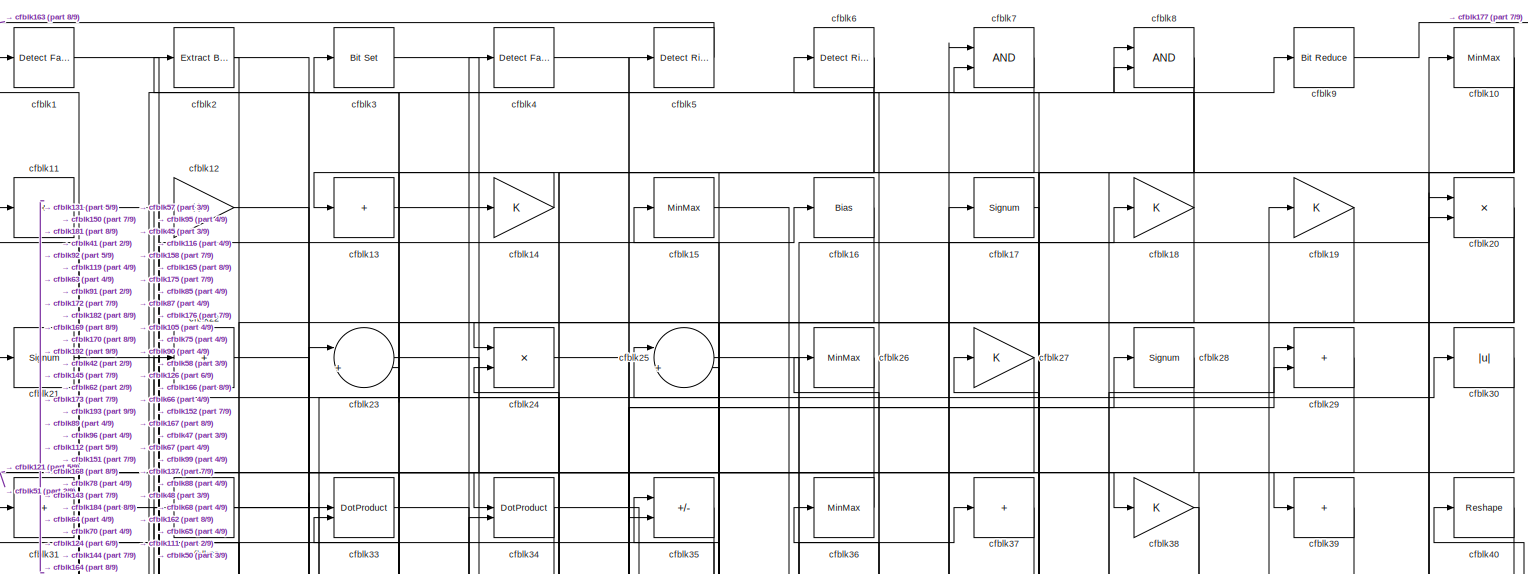
[diagram: root canvas - part 1/9, full width, top band]
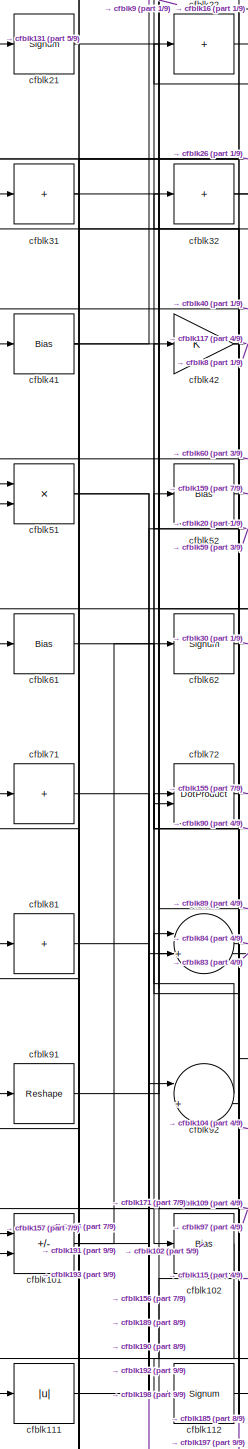
[diagram: root canvas - part 2/9, middle left region]
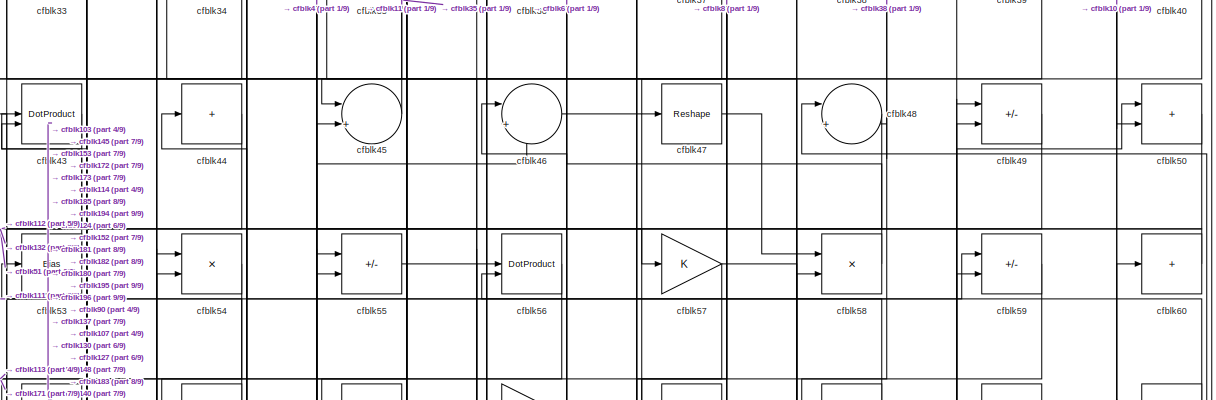
[diagram: root canvas - part 3/9, full width, top band]
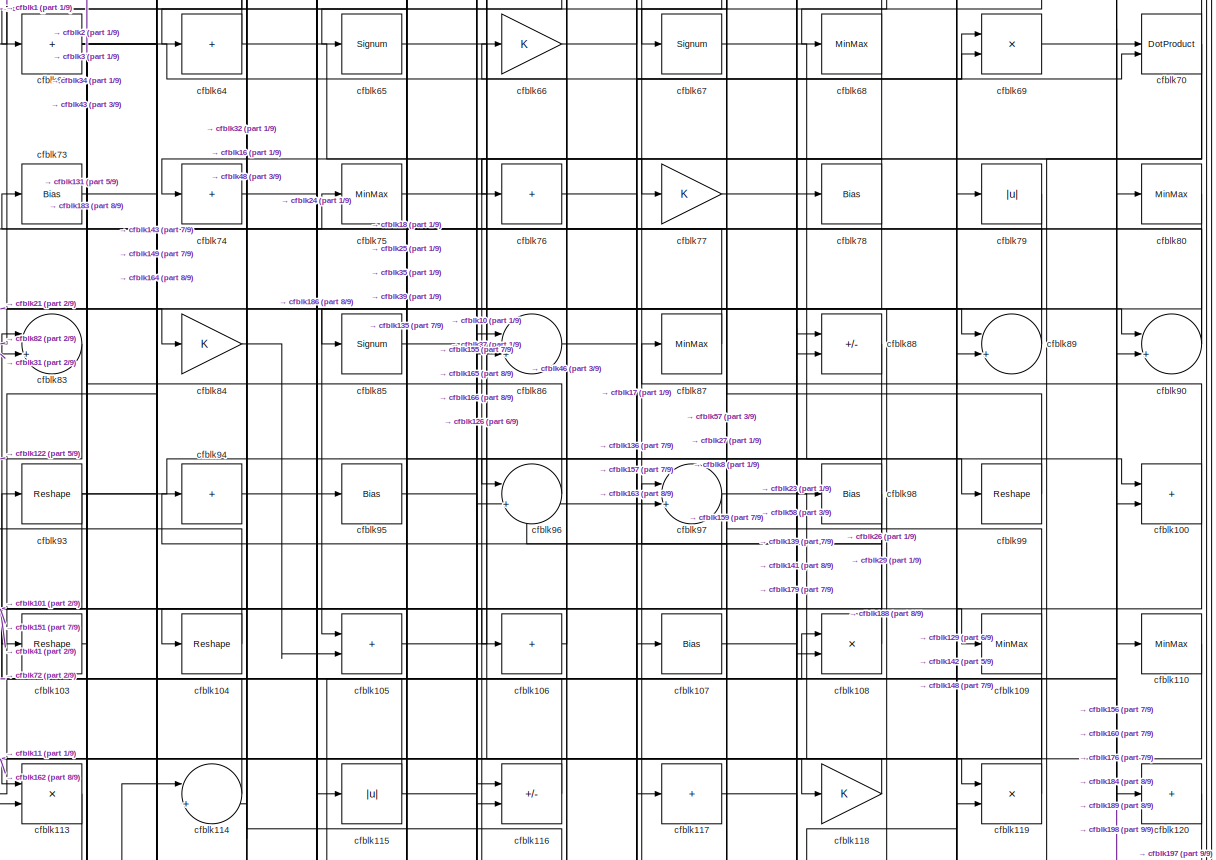
[diagram: root canvas - part 4/9, full width, middle band]
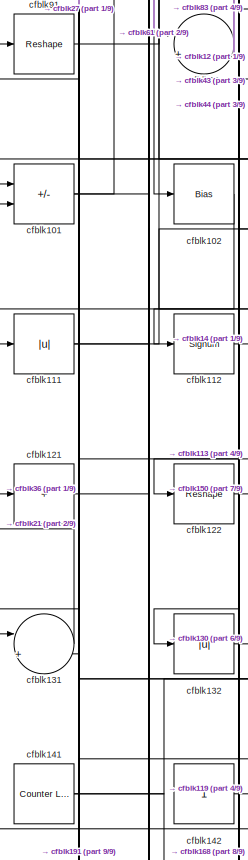
[diagram: root canvas - part 5/9, middle left region]
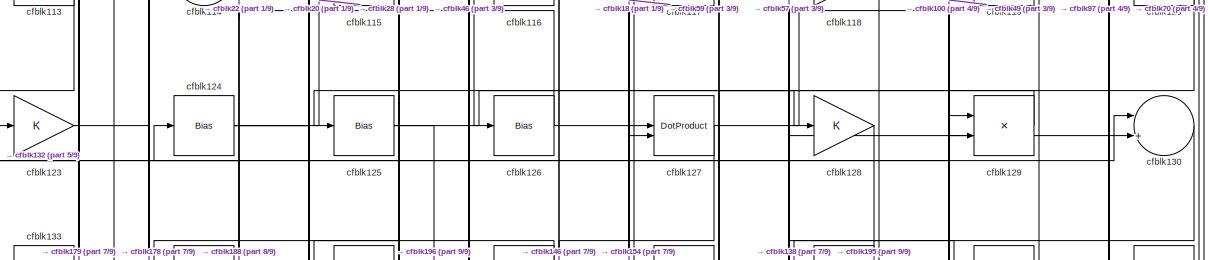
[diagram: root canvas - part 6/9, full width, middle band]
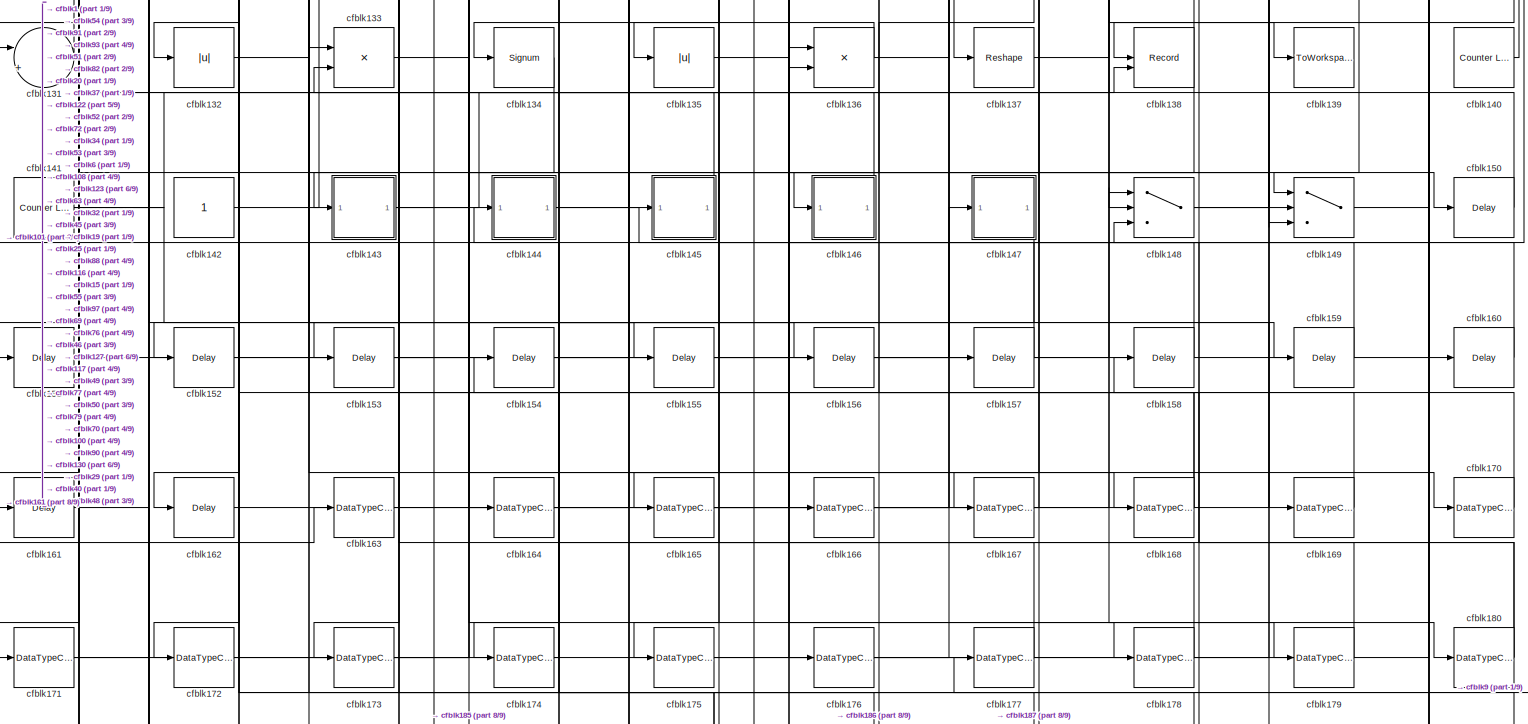
[diagram: root canvas - part 7/9, full width, bottom band]
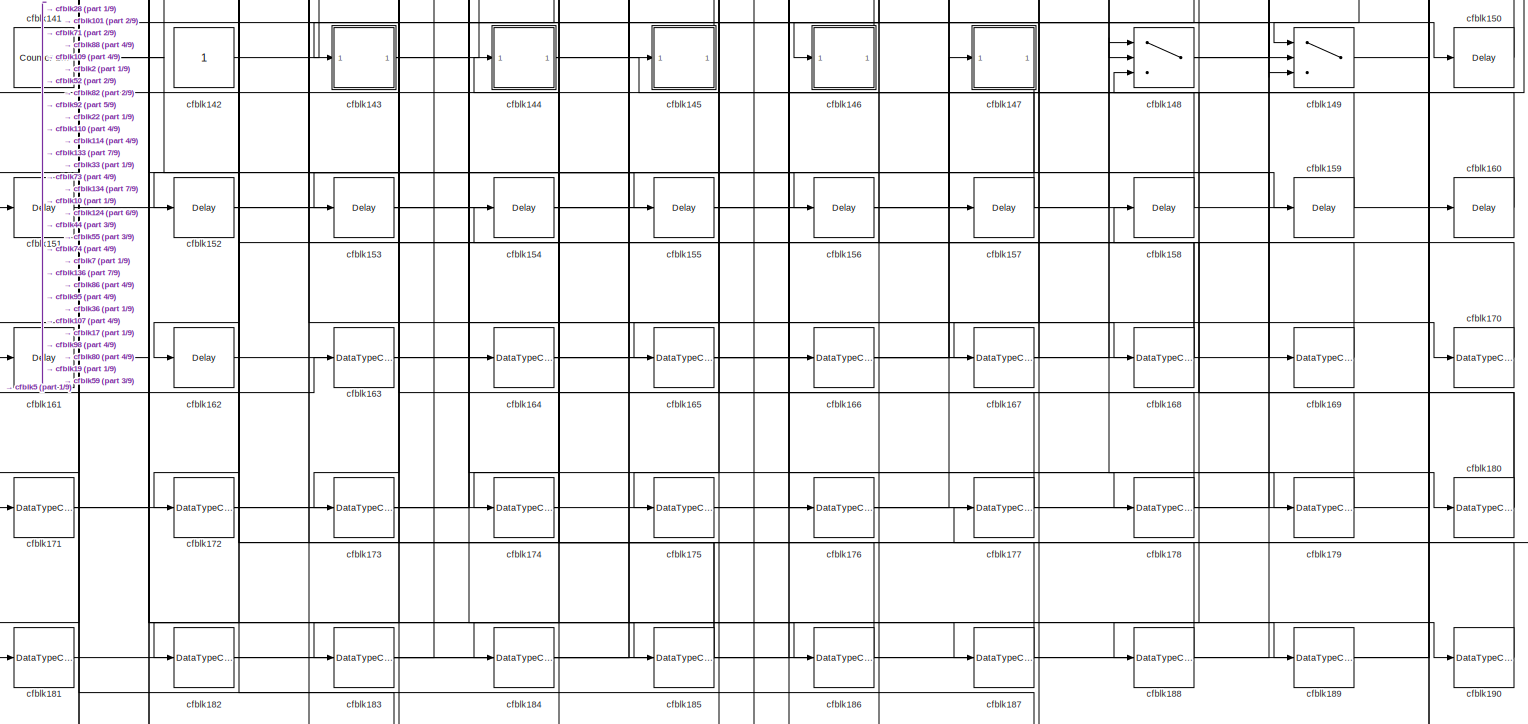
[diagram: root canvas - part 8/9, full width, bottom band]
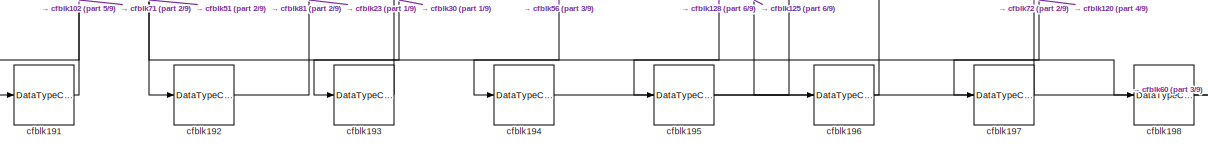
[diagram: root canvas - part 9/9, full width, bottom band]
MODEL slx_f39345427513
KIND model
CONFIG AbsTol = auto
CONFIG EnableMultiTasking = off
CONFIG FixedStep = auto
CONFIG MaxStep = auto
CONFIG MinStep = auto
CONFIG RelTol = 1e-3
CONFIG SampleTimeConstraint = Unconstrained
CONFIG SolverName = VariableStepAuto
CONFIG StartTime = 0.0
CONFIG StopTime = 10.0
BLOCK [Reference] cfblk1  REF=hdlsllib/Logic and Bit
Operations/Detect Fall
Nonpositive
  SourceBlock = hdlsllib/Logic and Bit\nOperations/Detect Fall\nNonpositive
  SourceType = Detect Fall Nonpositive
BLOCK [MinMax] cfblk10
BLOCK [Sum] cfblk100
  IconShape = rectangular
BLOCK [Sum] cfblk101
  IconShape = rectangular
  Inputs = +-
BLOCK [Bias] cfblk102
  Bias = 0.0
  SaturateOnIntegerOverflow = off
BLOCK [Reshape] cfblk103
BLOCK [Reshape] cfblk104
BLOCK [Sum] cfblk105
  IconShape = rectangular
BLOCK [Sum] cfblk106
  IconShape = rectangular
  Inputs = +
BLOCK [Bias] cfblk107
  Bias = 0.0
  SaturateOnIntegerOverflow = off
BLOCK [Product] cfblk108
  Inputs = */
  RndMeth = Zero
  SaturateOnIntegerOverflow = on
BLOCK [MinMax] cfblk109
BLOCK [Sum] cfblk11
  IconShape = rectangular
  Inputs = +
BLOCK [MinMax] cfblk110
BLOCK [Abs] cfblk111
  SaturateOnIntegerOverflow = off
BLOCK [Signum] cfblk112
BLOCK [Product] cfblk113
  Inputs = */
  RndMeth = Zero
  SaturateOnIntegerOverflow = on
BLOCK [Sum] cfblk114
  Inputs = |++
BLOCK [Abs] cfblk115
  SaturateOnIntegerOverflow = off
BLOCK [Sum] cfblk116
  IconShape = rectangular
  Inputs = +-
BLOCK [Sum] cfblk117
  IconShape = rectangular
  Inputs = +
BLOCK [Gain] cfblk118
BLOCK [Product] cfblk119
  Inputs = */
  RndMeth = Zero
  SaturateOnIntegerOverflow = on
BLOCK [Gain] cfblk12
BLOCK [Sum] cfblk120
  IconShape = rectangular
  Inputs = +
BLOCK [Sum] cfblk121
  IconShape = rectangular
  Inputs = +
BLOCK [Reshape] cfblk122
BLOCK [Gain] cfblk123
BLOCK [Bias] cfblk124
  Bias = 0.0
  SaturateOnIntegerOverflow = off
BLOCK [Bias] cfblk125
  Bias = 0.0
  SaturateOnIntegerOverflow = off
BLOCK [Bias] cfblk126
  Bias = 0.0
  SaturateOnIntegerOverflow = off
BLOCK [DotProduct] cfblk127
  OutDataTypeStr = Inherit: Inherit via internal rule
BLOCK [Gain] cfblk128
BLOCK [Product] cfblk129
  Inputs = */
  RndMeth = Zero
  SaturateOnIntegerOverflow = on
BLOCK [Sum] cfblk13
  IconShape = rectangular
  Inputs = +
BLOCK [Sum] cfblk130
  Inputs = |++
BLOCK [Sum] cfblk131
  Inputs = |++
BLOCK [Abs] cfblk132
  SaturateOnIntegerOverflow = off
BLOCK [Product] cfblk133
  Inputs = */
  RndMeth = Zero
  SaturateOnIntegerOverflow = on
BLOCK [Signum] cfblk134
BLOCK [Abs] cfblk135
  SaturateOnIntegerOverflow = off
BLOCK [Product] cfblk136
  Inputs = */
  RndMeth = Zero
  SaturateOnIntegerOverflow = on
BLOCK [Reshape] cfblk137
BLOCK [Record] cfblk138
  CompatibilityTag = XY
  FileSettingsInternal = {"entries":[{"content":{"excelSettings":{"content":{},"type":"Streamout.ExcelSettings"}},"type":"Streamout.FileSettingStorage","uuid":""}],"packageUris":["http:\/\/schema.mathworks.com\/mf0\/streamout_blocks\/R2020a"],"version":"1.0"}
  Layout = [1 1]
  SignalsInternal = {"entries":[{"content":{"signals":[{"content":{"blockPath":[],"dimensions":[1],"domain":"","lineColor":"#a2142f","plots":[1],"port":1,"signalID":3114,"signalName":"XY Graph:1"},"type":"RecordBlkView.Signal","uuid":""},{"content":{"blockPath":[],"dimensions":[1],"domain":"","lineColor":"#139fff","plots":[1],"port":2,"signalID":3117,"signalName":"XY Graph:2"},"type":"RecordBlkView.Signal","uuid":""}...<+146ch>
  VisualizationBindings = {"xyplotplugin":{"info":[{"series":[{"bindingParametersList":[{"parameter":"X-Axis","signalID":3114,"signalName":"XY Graph:1"},{"parameter":"Y-Axis","signalID":3117,"signalName":"XY Graph:2"}],"seriesID":791}],"subplotID":1}]}}
  st = -1
BLOCK [ToWorkspace] cfblk139
  MaxDataPoints = inf
  SampleTime = -1
  SaveFormat = Timeseries
  VariableName = simout
BLOCK [Gain] cfblk14
BLOCK [Reference] cfblk140  REF=hdlsllib/Sources/Counter
Limited
  SourceBlock = hdlsllib/Sources/Counter\nLimited
  SourceType = Counter Limited
BLOCK [Reference] cfblk141  REF=hdlsllib/Sources/Counter
Limited
  SourceBlock = hdlsllib/Sources/Counter\nLimited
  SourceType = Counter Limited
BLOCK [Constant] cfblk142
  SampleTime = -1
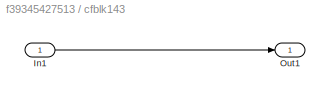
BLOCK [SubSystem] cfblk143
  LibrarySourceBlock = hdlsllib/Ports &\nSubsystems/Subsystem
BLOCK [Inport] cfblk143/In1
BLOCK [Outport] cfblk143/Out1
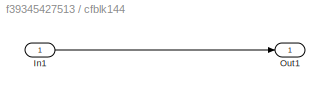
BLOCK [SubSystem] cfblk144
  LibrarySourceBlock = hdlsllib/Ports &\nSubsystems/Subsystem
BLOCK [Inport] cfblk144/In1
BLOCK [Outport] cfblk144/Out1
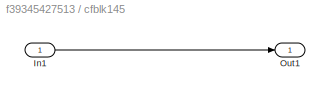
BLOCK [SubSystem] cfblk145
  LibrarySourceBlock = hdlsllib/Ports &\nSubsystems/Subsystem
BLOCK [Inport] cfblk145/In1
BLOCK [Outport] cfblk145/Out1
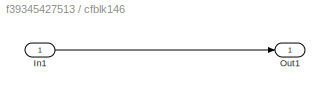
BLOCK [SubSystem] cfblk146
  LibrarySourceBlock = hdlsllib/Ports &\nSubsystems/Subsystem
BLOCK [Inport] cfblk146/In1
BLOCK [Outport] cfblk146/Out1
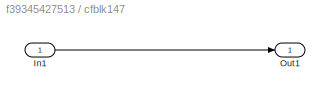
BLOCK [SubSystem] cfblk147
  LibrarySourceBlock = hdlsllib/Ports &\nSubsystems/Subsystem
BLOCK [Inport] cfblk147/In1
BLOCK [Outport] cfblk147/Out1
BLOCK [Switch] cfblk148
  InputSameDT = off
  SaturateOnIntegerOverflow = off
BLOCK [Switch] cfblk149
  InputSameDT = off
  SaturateOnIntegerOverflow = off
BLOCK [MinMax] cfblk15
BLOCK [Delay] cfblk150
  InputPortMap = u0
  SampleTime = 1
BLOCK [Delay] cfblk151
  InputPortMap = u0
  SampleTime = 1
BLOCK [Delay] cfblk152
  InputPortMap = u0
  SampleTime = 1
BLOCK [Delay] cfblk153
  InputPortMap = u0
  SampleTime = 1
BLOCK [Delay] cfblk154
  InputPortMap = u0
  SampleTime = 1
BLOCK [Delay] cfblk155
  InputPortMap = u0
  SampleTime = 1
BLOCK [Delay] cfblk156
  InputPortMap = u0
  SampleTime = 1
BLOCK [Delay] cfblk157
  InputPortMap = u0
  SampleTime = 1
BLOCK [Delay] cfblk158
  InputPortMap = u0
  SampleTime = 1
BLOCK [Delay] cfblk159
  InputPortMap = u0
  SampleTime = 1
BLOCK [Bias] cfblk16
  Bias = 0.0
  SaturateOnIntegerOverflow = off
BLOCK [Delay] cfblk160
  InputPortMap = u0
  SampleTime = 1
BLOCK [Delay] cfblk161
  InputPortMap = u0
  SampleTime = 1
BLOCK [Delay] cfblk162
  InputPortMap = u0
  SampleTime = 1
BLOCK [DataTypeConversion] cfblk163
  OutDataTypeStr = uint8
  RndMeth = Floor
  SaturateOnIntegerOverflow = off
BLOCK [DataTypeConversion] cfblk164
  OutDataTypeStr = uint8
  RndMeth = Floor
  SaturateOnIntegerOverflow = off
BLOCK [DataTypeConversion] cfblk165
  RndMeth = Floor
  SaturateOnIntegerOverflow = off
BLOCK [DataTypeConversion] cfblk166
  OutDataTypeStr = uint8
  RndMeth = Floor
  SaturateOnIntegerOverflow = off
BLOCK [DataTypeConversion] cfblk167
  OutDataTypeStr = uint8
  RndMeth = Floor
  SaturateOnIntegerOverflow = off
BLOCK [DataTypeConversion] cfblk168
  RndMeth = Floor
  SaturateOnIntegerOverflow = off
BLOCK [DataTypeConversion] cfblk169
  OutDataTypeStr = uint8
  RndMeth = Floor
  SaturateOnIntegerOverflow = off
BLOCK [Signum] cfblk17
BLOCK [DataTypeConversion] cfblk170
  OutDataTypeStr = uint8
  RndMeth = Floor
  SaturateOnIntegerOverflow = off
BLOCK [DataTypeConversion] cfblk171
  RndMeth = Floor
  SaturateOnIntegerOverflow = off
BLOCK [DataTypeConversion] cfblk172
  OutDataTypeStr = uint8
  RndMeth = Floor
  SaturateOnIntegerOverflow = off
BLOCK [DataTypeConversion] cfblk173
  OutDataTypeStr = uint8
  RndMeth = Floor
  SaturateOnIntegerOverflow = off
BLOCK [DataTypeConversion] cfblk174
  OutDataTypeStr = uint8
  RndMeth = Floor
  SaturateOnIntegerOverflow = off
BLOCK [DataTypeConversion] cfblk175
  OutDataTypeStr = uint8
  RndMeth = Floor
  SaturateOnIntegerOverflow = off
BLOCK [DataTypeConversion] cfblk176
  OutDataTypeStr = uint8
  RndMeth = Floor
  SaturateOnIntegerOverflow = off
BLOCK [DataTypeConversion] cfblk177
  OutDataTypeStr = uint8
  RndMeth = Floor
  SaturateOnIntegerOverflow = off
BLOCK [DataTypeConversion] cfblk178
  OutDataTypeStr = uint8
  RndMeth = Floor
  SaturateOnIntegerOverflow = off
BLOCK [DataTypeConversion] cfblk179
  OutDataTypeStr = uint8
  RndMeth = Floor
  SaturateOnIntegerOverflow = off
BLOCK [Gain] cfblk18
BLOCK [DataTypeConversion] cfblk180
  RndMeth = Floor
  SaturateOnIntegerOverflow = off
BLOCK [DataTypeConversion] cfblk181
  OutDataTypeStr = uint8
  RndMeth = Floor
  SaturateOnIntegerOverflow = off
BLOCK [DataTypeConversion] cfblk182
  OutDataTypeStr = uint8
  RndMeth = Floor
  SaturateOnIntegerOverflow = off
BLOCK [DataTypeConversion] cfblk183
  RndMeth = Floor
  SaturateOnIntegerOverflow = off
BLOCK [DataTypeConversion] cfblk184
  OutDataTypeStr = uint8
  RndMeth = Floor
  SaturateOnIntegerOverflow = off
BLOCK [DataTypeConversion] cfblk185
  RndMeth = Floor
  SaturateOnIntegerOverflow = off
BLOCK [DataTypeConversion] cfblk186
  OutDataTypeStr = uint8
  RndMeth = Floor
  SaturateOnIntegerOverflow = off
BLOCK [DataTypeConversion] cfblk187
  OutDataTypeStr = uint8
  RndMeth = Floor
  SaturateOnIntegerOverflow = off
BLOCK [DataTypeConversion] cfblk188
  OutDataTypeStr = uint8
  RndMeth = Floor
  SaturateOnIntegerOverflow = off
BLOCK [DataTypeConversion] cfblk189
  OutDataTypeStr = uint8
  RndMeth = Floor
  SaturateOnIntegerOverflow = off
BLOCK [Gain] cfblk19
BLOCK [DataTypeConversion] cfblk190
  OutDataTypeStr = uint8
  RndMeth = Floor
  SaturateOnIntegerOverflow = off
BLOCK [DataTypeConversion] cfblk191
  OutDataTypeStr = uint8
  RndMeth = Floor
  SaturateOnIntegerOverflow = off
BLOCK [DataTypeConversion] cfblk192
  OutDataTypeStr = uint8
  RndMeth = Floor
  SaturateOnIntegerOverflow = off
BLOCK [DataTypeConversion] cfblk193
  OutDataTypeStr = uint8
  RndMeth = Floor
  SaturateOnIntegerOverflow = off
BLOCK [DataTypeConversion] cfblk194
  OutDataTypeStr = uint8
  RndMeth = Floor
  SaturateOnIntegerOverflow = off
BLOCK [DataTypeConversion] cfblk195
  OutDataTypeStr = uint8
  RndMeth = Floor
  SaturateOnIntegerOverflow = off
BLOCK [DataTypeConversion] cfblk196
  OutDataTypeStr = uint8
  RndMeth = Floor
  SaturateOnIntegerOverflow = off
BLOCK [DataTypeConversion] cfblk197
  OutDataTypeStr = uint8
  RndMeth = Floor
  SaturateOnIntegerOverflow = off
BLOCK [DataTypeConversion] cfblk198
  OutDataTypeStr = uint8
  RndMeth = Floor
  SaturateOnIntegerOverflow = off
BLOCK [Reference] cfblk2  REF=simulink/Logic and Bit
Operations/Extract Bits
  LibrarySourceBlock = hdlsllib/Logic and Bit\nOperations/Extract Bits
  SourceBlock = simulink/Logic and Bit\nOperations/Extract Bits
  SourceType = Extract Bits
BLOCK [Product] cfblk20
  Inputs = */
  RndMeth = Zero
  SaturateOnIntegerOverflow = on
BLOCK [Signum] cfblk21
BLOCK [Sum] cfblk22
  IconShape = rectangular
  Inputs = +
BLOCK [Sum] cfblk23
  Inputs = |++
BLOCK [Product] cfblk24
  Inputs = */
  RndMeth = Zero
  SaturateOnIntegerOverflow = on
BLOCK [Sum] cfblk25
  Inputs = |++
BLOCK [MinMax] cfblk26
BLOCK [Gain] cfblk27
BLOCK [Signum] cfblk28
BLOCK [Sum] cfblk29
  IconShape = rectangular
BLOCK [Reference] cfblk3  REF=simulink/Logic and Bit
Operations/Bit Set
  LibrarySourceBlock = hdlsllib/Logic and Bit\nOperations/Bit Set
  SourceBlock = simulink/Logic and Bit\nOperations/Bit Set
  SourceType = Bit Set
BLOCK [Abs] cfblk30
  SaturateOnIntegerOverflow = off
BLOCK [Sum] cfblk31
  IconShape = rectangular
  Inputs = +
BLOCK [Sum] cfblk32
  IconShape = rectangular
  Inputs = +
BLOCK [DotProduct] cfblk33
  OutDataTypeStr = Inherit: Inherit via internal rule
BLOCK [DotProduct] cfblk34
  OutDataTypeStr = Inherit: Inherit via internal rule
BLOCK [Sum] cfblk35
  IconShape = rectangular
  Inputs = +-
BLOCK [MinMax] cfblk36
BLOCK [Sum] cfblk37
  IconShape = rectangular
  Inputs = +
BLOCK [Gain] cfblk38
BLOCK [Sum] cfblk39
  IconShape = rectangular
  Inputs = +
BLOCK [Reference] cfblk4  REF=hdlsllib/Logic and Bit
Operations/Detect Fall
Nonpositive
  SourceBlock = hdlsllib/Logic and Bit\nOperations/Detect Fall\nNonpositive
  SourceType = Detect Fall Nonpositive
BLOCK [Reshape] cfblk40
BLOCK [Bias] cfblk41
  Bias = 0.0
  SaturateOnIntegerOverflow = off
BLOCK [Gain] cfblk42
BLOCK [DotProduct] cfblk43
  OutDataTypeStr = Inherit: Inherit via internal rule
BLOCK [Sum] cfblk44
  IconShape = rectangular
  Inputs = +
BLOCK [Sum] cfblk45
  Inputs = |++
BLOCK [Sum] cfblk46
  Inputs = |++
BLOCK [Reshape] cfblk47
BLOCK [Sum] cfblk48
  Inputs = |++
BLOCK [Sum] cfblk49
  IconShape = rectangular
  Inputs = +-
BLOCK [Reference] cfblk5  REF=hdlsllib/Logic and Bit
Operations/Detect Rise
Positive
  SourceBlock = hdlsllib/Logic and Bit\nOperations/Detect Rise\nPositive
  SourceType = Detect Rise Positive
BLOCK [Sum] cfblk50
  IconShape = rectangular
BLOCK [Product] cfblk51
  Inputs = */
  RndMeth = Zero
  SaturateOnIntegerOverflow = on
BLOCK [Bias] cfblk52
  Bias = 0.0
  SaturateOnIntegerOverflow = off
BLOCK [Bias] cfblk53
  Bias = 0.0
  SaturateOnIntegerOverflow = off
BLOCK [Product] cfblk54
  Inputs = */
  RndMeth = Zero
  SaturateOnIntegerOverflow = on
BLOCK [Sum] cfblk55
  IconShape = rectangular
  Inputs = +-
BLOCK [DotProduct] cfblk56
  OutDataTypeStr = Inherit: Inherit via internal rule
BLOCK [Gain] cfblk57
BLOCK [Product] cfblk58
  Inputs = */
  RndMeth = Zero
  SaturateOnIntegerOverflow = on
BLOCK [Sum] cfblk59
  IconShape = rectangular
  Inputs = +-
BLOCK [Reference] cfblk6  REF=hdlsllib/Logic and Bit
Operations/Detect Rise
Positive
  SourceBlock = hdlsllib/Logic and Bit\nOperations/Detect Rise\nPositive
  SourceType = Detect Rise Positive
BLOCK [Sum] cfblk60
  IconShape = rectangular
  Inputs = +
BLOCK [Bias] cfblk61
  Bias = 0.0
  SaturateOnIntegerOverflow = off
BLOCK [Signum] cfblk62
BLOCK [Sum] cfblk63
  IconShape = rectangular
  Inputs = +
BLOCK [Sum] cfblk64
  IconShape = rectangular
  Inputs = +
BLOCK [Signum] cfblk65
BLOCK [Gain] cfblk66
BLOCK [Signum] cfblk67
BLOCK [MinMax] cfblk68
BLOCK [Product] cfblk69
  Inputs = */
  RndMeth = Zero
  SaturateOnIntegerOverflow = on
BLOCK [Logic] cfblk7
  AllPortsSameDT = off
  OutDataTypeStr = boolean
BLOCK [DotProduct] cfblk70
  OutDataTypeStr = Inherit: Inherit via internal rule
BLOCK [Sum] cfblk71
  IconShape = rectangular
  Inputs = +
BLOCK [DotProduct] cfblk72
  OutDataTypeStr = Inherit: Inherit via internal rule
BLOCK [Bias] cfblk73
  Bias = 0.0
  SaturateOnIntegerOverflow = off
BLOCK [Sum] cfblk74
  IconShape = rectangular
  Inputs = +
BLOCK [MinMax] cfblk75
BLOCK [Sum] cfblk76
  IconShape = rectangular
  Inputs = +
BLOCK [Gain] cfblk77
BLOCK [Bias] cfblk78
  Bias = 0.0
  SaturateOnIntegerOverflow = off
BLOCK [Abs] cfblk79
  SaturateOnIntegerOverflow = off
BLOCK [Logic] cfblk8
  AllPortsSameDT = off
  OutDataTypeStr = boolean
BLOCK [MinMax] cfblk80
BLOCK [Sum] cfblk81
  IconShape = rectangular
  Inputs = +
BLOCK [Sum] cfblk82
  Inputs = |++
BLOCK [Sum] cfblk83
  Inputs = |++
BLOCK [Gain] cfblk84
BLOCK [Signum] cfblk85
BLOCK [Sum] cfblk86
  Inputs = |++
BLOCK [MinMax] cfblk87
BLOCK [Sum] cfblk88
  IconShape = rectangular
  Inputs = +-
BLOCK [Sum] cfblk89
  Inputs = |++
BLOCK [Reference] cfblk9  REF=hdlsllib/Logic and Bit
Operations/Bit Reduce
  SourceBlock = hdlsllib/Logic and Bit\nOperations/Bit Reduce
  SourceType = Bit Reduce
BLOCK [Sum] cfblk90
  Inputs = |++
BLOCK [Reshape] cfblk91
BLOCK [Sum] cfblk92
  Inputs = |++
BLOCK [Reshape] cfblk93
BLOCK [Sum] cfblk94
  IconShape = rectangular
  Inputs = +
BLOCK [Bias] cfblk95
  Bias = 0.0
  SaturateOnIntegerOverflow = off
BLOCK [Sum] cfblk96
  Inputs = |++
BLOCK [Sum] cfblk97
  Inputs = |++
BLOCK [Bias] cfblk98
  Bias = 0.0
  SaturateOnIntegerOverflow = off
BLOCK [Reshape] cfblk99
NET cfblk100:1 -> cfblk129:2, cfblk87:1
NET cfblk101:1 -> cfblk189:1, cfblk62:1
LINE cfblk102:1 -> cfblk191:1
LINE cfblk103:1 -> cfblk43:2
LINE cfblk104:1 -> cfblk31:1
LINE cfblk105:1 -> cfblk37:1
LINE cfblk106:1 -> cfblk66:1
LINE cfblk107:1 -> cfblk58:2
LINE cfblk108:1 -> cfblk94:1
NET cfblk109:1 -> cfblk162:1, cfblk73:1
NET cfblk10:1 -> cfblk184:1, cfblk50:2, cfblk88:2
LINE cfblk110:1 -> cfblk183:1
NET cfblk111:1 -> cfblk20:2, cfblk59:1
LINE cfblk112:1 -> cfblk14:1
LINE cfblk113:1 -> cfblk131:1
LINE cfblk114:1 -> cfblk83:1
NET cfblk115:1 -> cfblk72:1, cfblk86:2
LINE cfblk116:1 -> cfblk25:1
LINE cfblk117:1 -> cfblk139:1
LINE cfblk118:1 -> cfblk113:1
LINE cfblk119:1 -> cfblk93:1
LINE cfblk11:1 -> cfblk119:1
LINE cfblk120:1 -> cfblk197:1
LINE cfblk121:1 -> cfblk92:1
LINE cfblk122:1 -> cfblk150:1
LINE cfblk123:1 -> cfblk178:1
NET cfblk124:1 -> cfblk20:1, cfblk28:1, cfblk46:2
NET cfblk125:1 -> cfblk128:1, cfblk196:1
NET cfblk126:1 -> cfblk18:1, cfblk22:1
NET cfblk127:1 -> cfblk146:1, cfblk49:1
LINE cfblk128:1 -> cfblk195:1
LINE cfblk129:1 -> cfblk125:1
LINE cfblk12:1 -> cfblk34:1
LINE cfblk130:1 -> cfblk138:1
LINE cfblk131:1 -> cfblk21:1
LINE cfblk132:1 -> cfblk130:1
LINE cfblk133:1 -> cfblk185:1
LINE cfblk134:1 -> cfblk161:1
LINE cfblk135:1 -> cfblk97:2
NET cfblk136:1 -> cfblk134:1, cfblk69:1
LINE cfblk137:1 -> cfblk29:1
LINE cfblk13:1 -> cfblk4:1
LINE cfblk140:1 -> cfblk48:1
NET cfblk141:1 -> cfblk169:1, cfblk88:1
LINE cfblk142:1 -> cfblk119:2
LINE cfblk143/In1:1 -> cfblk143/Out1:1
NET cfblk143:1 -> cfblk108:1, cfblk138:2
LINE cfblk144/In1:1 -> cfblk144/Out1:1
NET cfblk144:1 -> cfblk29:2, cfblk40:1
LINE cfblk145/In1:1 -> cfblk145/Out1:1
LINE cfblk145:1 -> cfblk53:1
LINE cfblk146/In1:1 -> cfblk146/Out1:1
LINE cfblk146:1 -> cfblk91:1
LINE cfblk147/In1:1 -> cfblk147/Out1:1
LINE cfblk147:1 -> cfblk174:1
NET cfblk148:1 -> cfblk50:1, cfblk79:1
LINE cfblk149:1 -> cfblk90:2
LINE cfblk14:1 -> cfblk13:1
LINE cfblk150:1 -> cfblk1:1
LINE cfblk151:1 -> cfblk34:2
LINE cfblk152:1 -> cfblk45:2
LINE cfblk153:1 -> cfblk148:1
LINE cfblk154:1 -> cfblk127:1
LINE cfblk155:1 -> cfblk116:2
LINE cfblk156:1 -> cfblk100:2
LINE cfblk157:1 -> cfblk101:1
LINE cfblk158:1 -> cfblk25:2
LINE cfblk159:1 -> cfblk97:1
LINE cfblk15:1 -> cfblk176:1
LINE cfblk160:1 -> cfblk136:1
LINE cfblk161:1 -> cfblk187:1
LINE cfblk162:1 -> cfblk19:1
LINE cfblk163:1 -> cfblk107:1
LINE cfblk164:1 -> cfblk5:1
NET cfblk165:1 -> cfblk86:1, cfblk98:1
LINE cfblk166:1 -> cfblk7:1
LINE cfblk167:1 -> cfblk7:2
NET cfblk168:1 -> cfblk36:1, cfblk92:2
LINE cfblk169:1 -> cfblk33:1
LINE cfblk16:1 -> cfblk64:1
LINE cfblk170:1 -> cfblk33:2
NET cfblk171:1 -> cfblk49:2, cfblk82:2
LINE cfblk172:1 -> cfblk54:1
LINE cfblk173:1 -> cfblk54:2
LINE cfblk174:1 -> cfblk144:1
LINE cfblk175:1 -> cfblk147:1
LINE cfblk176:1 -> cfblk70:1
LINE cfblk177:1 -> cfblk15:1
LINE cfblk178:1 -> cfblk154:1
LINE cfblk179:1 -> cfblk123:1
LINE cfblk17:1 -> cfblk167:1
NET cfblk180:1 -> cfblk148:3, cfblk158:1
LINE cfblk181:1 -> cfblk55:1
LINE cfblk182:1 -> cfblk55:2
NET cfblk183:1 -> cfblk114:1, cfblk59:2
LINE cfblk184:1 -> cfblk110:1
NET cfblk185:1 -> cfblk136:2, cfblk44:1, cfblk52:1
LINE cfblk186:1 -> cfblk133:1
LINE cfblk187:1 -> cfblk133:2
LINE cfblk188:1 -> cfblk124:1
LINE cfblk189:1 -> cfblk80:1
NET cfblk18:1 -> cfblk85:1, cfblk8:1
LINE cfblk190:1 -> cfblk82:1
LINE cfblk191:1 -> cfblk71:1
LINE cfblk192:1 -> cfblk23:1
LINE cfblk193:1 -> cfblk81:1
LINE cfblk194:1 -> cfblk60:1
LINE cfblk195:1 -> cfblk56:1
LINE cfblk196:1 -> cfblk56:2
LINE cfblk197:1 -> cfblk72:2
LINE cfblk198:1 -> cfblk120:1
LINE cfblk19:1 -> cfblk175:1
LINE cfblk1:1 -> cfblk63:1
NET cfblk20:1 -> cfblk172:1, cfblk23:2
LINE cfblk21:1 -> cfblk89:2
LINE cfblk22:1 -> cfblk170:1
LINE cfblk23:1 -> cfblk78:1
LINE cfblk24:1 -> cfblk95:1
LINE cfblk25:1 -> cfblk90:1
LINE cfblk26:1 -> cfblk51:2
LINE cfblk27:1 -> cfblk131:2
LINE cfblk28:1 -> cfblk181:1
LINE cfblk29:1 -> cfblk68:1
NET cfblk2:1 -> cfblk182:1, cfblk35:2
LINE cfblk30:1 -> cfblk193:1
NET cfblk31:1 -> cfblk61:1, cfblk83:2
NET cfblk32:1 -> cfblk145:1, cfblk39:1
LINE cfblk33:1 -> cfblk168:1
NET cfblk34:1 -> cfblk116:1, cfblk143:1
LINE cfblk35:1 -> cfblk45:1
LINE cfblk36:1 -> cfblk121:1
LINE cfblk37:1 -> cfblk152:1
LINE cfblk38:1 -> cfblk48:2
LINE cfblk39:1 -> cfblk65:1
LINE cfblk3:1 -> cfblk38:1
LINE cfblk40:1 -> cfblk41:1
NET cfblk41:1 -> cfblk109:1, cfblk111:1, cfblk9:1
NET cfblk42:1 -> cfblk117:1, cfblk8:2
LINE cfblk43:1 -> cfblk132:1
LINE cfblk44:1 -> cfblk112:1
LINE cfblk45:1 -> cfblk11:1
LINE cfblk46:1 -> cfblk137:1
LINE cfblk47:1 -> cfblk58:1
LINE cfblk48:1 -> cfblk114:2
LINE cfblk49:1 -> cfblk148:2
LINE cfblk4:1 -> cfblk57:1
LINE cfblk50:1 -> cfblk153:1
NET cfblk51:1 -> cfblk156:1, cfblk198:1
LINE cfblk52:1 -> cfblk159:1
LINE cfblk53:1 -> cfblk43:1
LINE cfblk54:1 -> cfblk171:1
LINE cfblk55:1 -> cfblk180:1
LINE cfblk56:1 -> cfblk194:1
NET cfblk57:1 -> cfblk113:2, cfblk130:2
LINE cfblk58:1 -> cfblk6:1
LINE cfblk59:1 -> cfblk127:2
LINE cfblk5:1 -> cfblk163:1
LINE cfblk60:1 -> cfblk51:1
LINE cfblk61:1 -> cfblk102:1
LINE cfblk62:1 -> cfblk30:1
NET cfblk63:1 -> cfblk106:1, cfblk149:2, cfblk149:3, cfblk70:2
NET cfblk64:1 -> cfblk32:1, cfblk77:1
LINE cfblk65:1 -> cfblk118:1
LINE cfblk66:1 -> cfblk17:1
LINE cfblk67:1 -> cfblk100:1
NET cfblk68:1 -> cfblk26:1, cfblk74:1
LINE cfblk69:1 -> cfblk160:1
NET cfblk6:1 -> cfblk173:1, cfblk24:1
NET cfblk70:1 -> cfblk108:2, cfblk126:1, cfblk149:1, cfblk24:2
LINE cfblk71:1 -> cfblk190:1
LINE cfblk72:1 -> cfblk155:1
LINE cfblk73:1 -> cfblk164:1
LINE cfblk74:1 -> cfblk186:1
LINE cfblk75:1 -> cfblk10:1
LINE cfblk76:1 -> cfblk157:1
LINE cfblk77:1 -> cfblk179:1
NET cfblk78:1 -> cfblk104:1, cfblk76:1
LINE cfblk79:1 -> cfblk105:1
LINE cfblk7:1 -> cfblk165:1
LINE cfblk80:1 -> cfblk188:1
LINE cfblk81:1 -> cfblk192:1
LINE cfblk82:1 -> cfblk84:1
LINE cfblk83:1 -> cfblk122:1
LINE cfblk84:1 -> cfblk105:2
LINE cfblk85:1 -> cfblk89:1
LINE cfblk86:1 -> cfblk69:2
LINE cfblk87:1 -> cfblk35:1
LINE cfblk88:1 -> cfblk135:1
LINE cfblk89:1 -> cfblk3:1
NET cfblk8:1 -> cfblk47:1, cfblk67:1
NET cfblk90:1 -> cfblk42:1, cfblk46:1
LINE cfblk91:1 -> cfblk16:1
LINE cfblk92:1 -> cfblk12:1
NET cfblk93:1 -> cfblk151:1, cfblk75:1, cfblk99:1
LINE cfblk94:1 -> cfblk115:1
LINE cfblk95:1 -> cfblk166:1
LINE cfblk96:1 -> cfblk2:1
NET cfblk97:1 -> cfblk101:2, cfblk129:1
NET cfblk98:1 -> cfblk103:1, cfblk96:1, cfblk96:2
LINE cfblk99:1 -> cfblk27:1
LINE cfblk9:1 -> cfblk177:1
note: NET lines group one-source signal fan-out (src -> all destinations, sorted); 1:1 wires keep LINE
